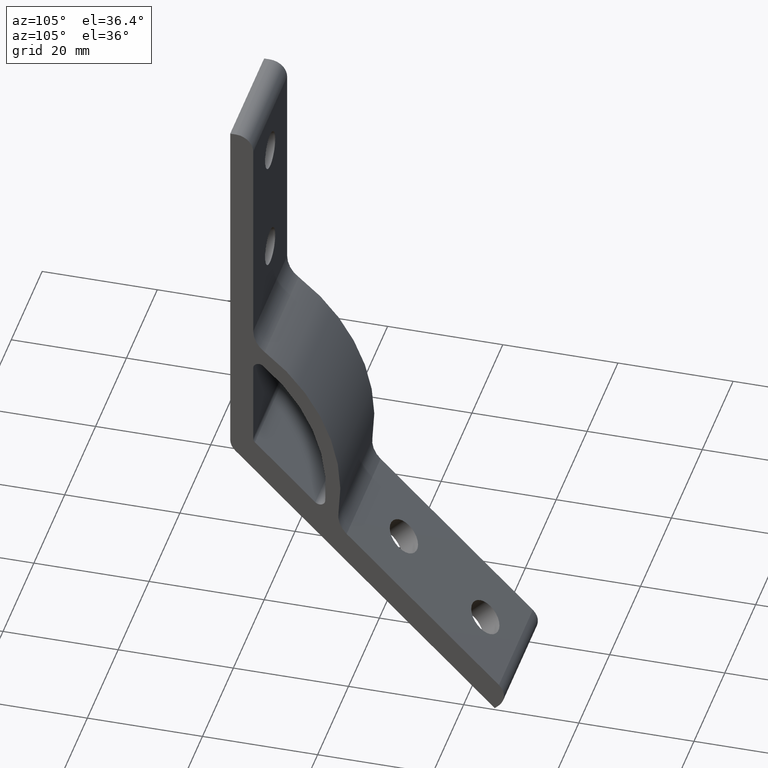
[diagram: clean part render]
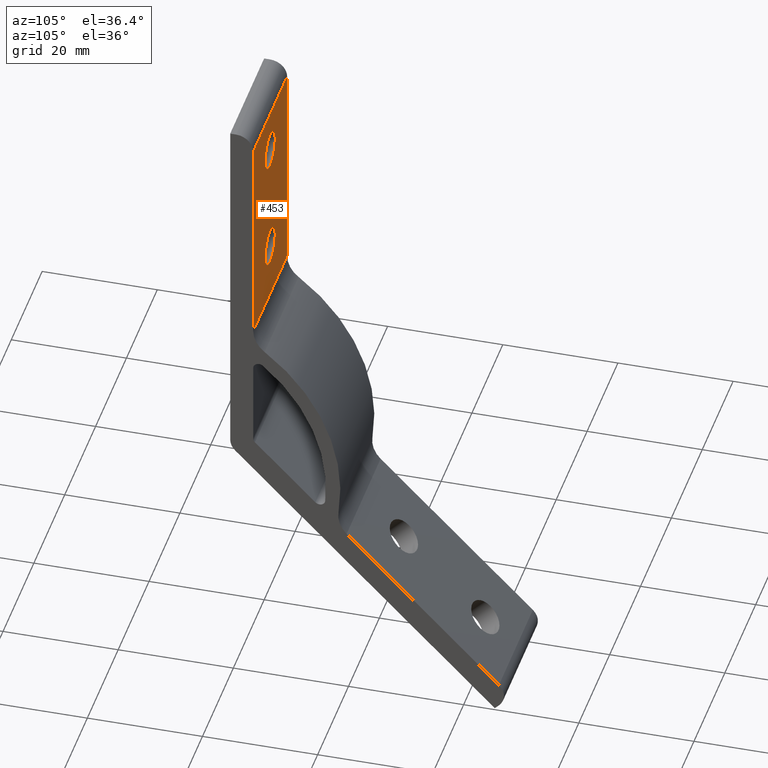
[diagram: same view with one face highlighted and labeled with its STEP entity id]
A machine part, auxiliary view. The second image highlights one B-rep face of the part: STEP entity #453.
In plain terms, the highlighted planar face has unit normal (0, 1, 0).
Its self-contained STEP definition (entity closure, byte-faithful):
#24=FACE_BOUND('',#85,.T.);
#25=FACE_BOUND('',#86,.T.);
#33=PLANE('',#501);
#51=FACE_OUTER_BOUND('',#84,.T.);
#84=EDGE_LOOP('',(#361,#362,#363,#364));
#85=EDGE_LOOP('',(#365));
#86=EDGE_LOOP('',(#366));
#110=LINE('',#693,#144);
#113=LINE('',#715,#147);
#120=LINE('',#747,#154);
#122=LINE('',#752,#156);
#144=VECTOR('',#548,37.3951868083209);
#147=VECTOR('',#569,22.);
#154=VECTOR('',#606,22.);
#156=VECTOR('',#612,37.3951868083209);
#186=CIRCLE('',#492,3.25);
#188=CIRCLE('',#495,3.25);
#210=VERTEX_POINT('',#690);
#211=VERTEX_POINT('',#692);
#221=VERTEX_POINT('',#713);
#226=VERTEX_POINT('',#730);
#228=VERTEX_POINT('',#735);
#231=VERTEX_POINT('',#746);
#256=EDGE_CURVE('',#211,#210,#110,.T.);
#267=EDGE_CURVE('',#221,#210,#113,.T.);
#274=EDGE_CURVE('',#226,#226,#186,.T.);
#276=EDGE_CURVE('',#228,#228,#188,.T.);
#281=EDGE_CURVE('',#211,#231,#120,.T.);
#284=EDGE_CURVE('',#231,#221,#122,.T.);
#361=ORIENTED_EDGE('',*,*,#267,.F.);
#362=ORIENTED_EDGE('',*,*,#284,.F.);
#363=ORIENTED_EDGE('',*,*,#281,.F.);
#364=ORIENTED_EDGE('',*,*,#256,.T.);
#365=ORIENTED_EDGE('',*,*,#274,.T.);
#366=ORIENTED_EDGE('',*,*,#276,.T.);
#453=ADVANCED_FACE('',(#51,#24,#25),#33,.T.);
#492=AXIS2_PLACEMENT_3D('',#731,#587,#588);
#495=AXIS2_PLACEMENT_3D('',#736,#593,#594);
#501=AXIS2_PLACEMENT_3D('',#751,#610,#611);
#548=DIRECTION('',(0.,-1.29095700537809E-16,1.));
#569=DIRECTION('',(-1.,0.,0.));
#587=DIRECTION('center_axis',(0.,-1.,-1.29095700537809E-16));
#588=DIRECTION('ref_axis',(1.,0.,0.));
#593=DIRECTION('center_axis',(0.,-1.,-1.29095700537809E-16));
#594=DIRECTION('ref_axis',(1.,0.,0.));
#606=DIRECTION('',(1.,0.,0.));
#610=DIRECTION('center_axis',(0.,1.,1.29095700537809E-16));
#611=DIRECTION('ref_axis',(0.,-8.88178419700125E-17,1.));
#612=DIRECTION('',(0.,-1.29095700537809E-16,1.));
#690=CARTESIAN_POINT('',(0.,4.,-3.));
#692=CARTESIAN_POINT('',(0.,4.00000000000001,-40.3951868083209));
#693=CARTESIAN_POINT('',(0.,4.00000000000001,-43.));
#713=CARTESIAN_POINT('',(22.,4.,-3.));
#715=CARTESIAN_POINT('',(0.,4.,-3.));
#730=CARTESIAN_POINT('',(14.25,4.,-10.5));
#731=CARTESIAN_POINT('Origin',(11.,4.,-10.5));
#735=CARTESIAN_POINT('',(14.25,4.,-30.5));
#736=CARTESIAN_POINT('Origin',(11.,4.,-30.5));
#746=CARTESIAN_POINT('',(22.,4.00000000000001,-40.3951868083209));
#747=CARTESIAN_POINT('',(0.,4.00000000000001,-40.3951868083209));
#751=CARTESIAN_POINT('Origin',(0.,4.00000000000001,-43.));
#752=CARTESIAN_POINT('',(22.,4.00000000000001,-43.));